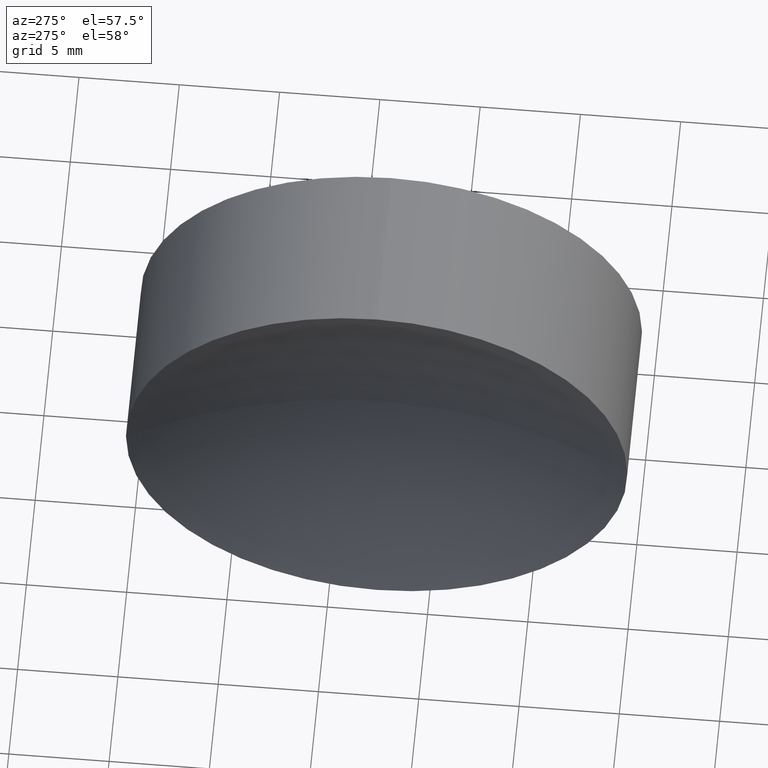
[diagram: clean part render]
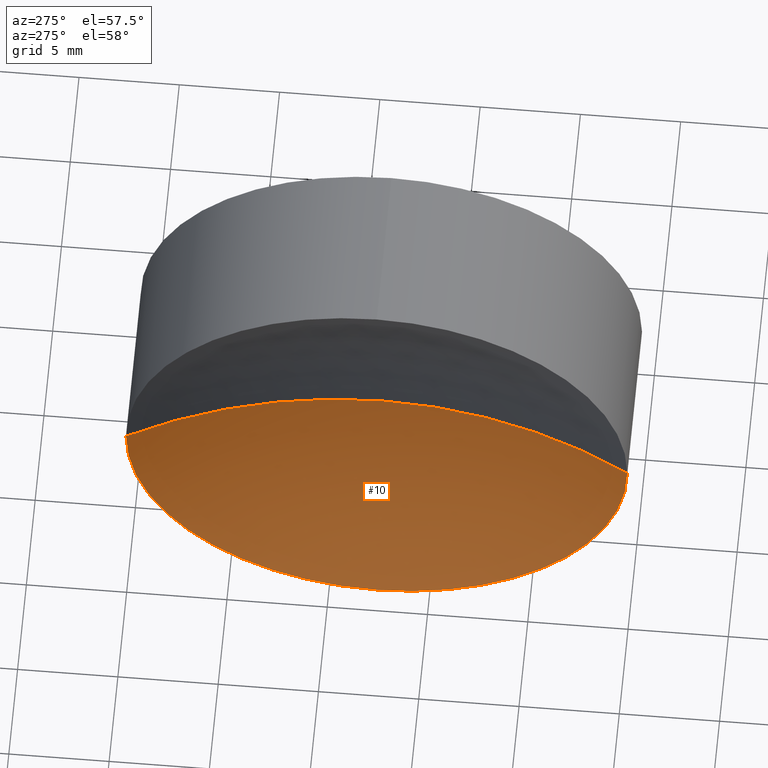
[diagram: same view with one face highlighted and labeled with its STEP entity id]
A machine part, auxiliary view. The second image highlights one B-rep face of the part: STEP entity #10.
In plain terms, the highlighted spherical surface has radius 26.16 mm.
Its self-contained STEP definition (entity closure, byte-faithful):
#9 = EDGE_CURVE ( 'NONE', #110, #179, #200, .T. ) ;
#10 = ADVANCED_FACE ( 'NONE', ( #187 ), #148, .F. ) ;
#12 = DIRECTION ( 'NONE',  ( 0.0000000000000000000, 1.224646799147353200E-016, -1.000000000000000000 ) ) ;
#16 = DIRECTION ( 'NONE',  ( 0.0000000000000000000, 0.0000000000000000000, -1.000000000000000000 ) ) ;
#20 = DIRECTION ( 'NONE',  ( 0.0000000000000000000, 0.0000000000000000000, 1.000000000000000000 ) ) ;
#27 = DIRECTION ( 'NONE',  ( 0.0000000000000000000, 0.0000000000000000000, 1.000000000000000000 ) ) ;
#31 = ORIENTED_EDGE ( 'NONE', *, *, #9, .T. ) ;
#38 = CARTESIAN_POINT ( 'NONE',  ( 55.87281597442936500, 32.61130143649369700, 0.0000000000000000000 ) ) ;
#43 = EDGE_LOOP ( 'NONE', ( #73, #59, #210, #31 ) ) ;
#46 = CIRCLE ( 'NONE', #125, 26.15999999999999700 ) ;
#55 = AXIS2_PLACEMENT_3D ( 'NONE', #206, #12, #186 ) ;
#59 = ORIENTED_EDGE ( 'NONE', *, *, #118, .T. ) ;
#73 = ORIENTED_EDGE ( 'NONE', *, *, #213, .F. ) ;
#78 = CARTESIAN_POINT ( 'NONE',  ( 55.87281597442936500, 45.11130143649369700, 0.0000000000000000000 ) ) ;
#83 = DIRECTION ( 'NONE',  ( 1.000000000000000000, 0.0000000000000000000, 0.0000000000000000000 ) ) ;
#86 = CIRCLE ( 'NONE', #151, 12.49999999999999600 ) ;
#105 = AXIS2_PLACEMENT_3D ( 'NONE', #139, #16, #205 ) ;
#110 = VERTEX_POINT ( 'NONE', #209 ) ;
#111 = CARTESIAN_POINT ( 'NONE',  ( 59.05248525444187600, 32.61130143649370400, 0.0000000000000000000 ) ) ;
#117 = CARTESIAN_POINT ( 'NONE',  ( 32.89248525444188000, 32.61130143649370400, 0.0000000000000000000 ) ) ;
#118 = EDGE_CURVE ( 'NONE', #224, #214, #46, .T. ) ;
#125 = AXIS2_PLACEMENT_3D ( 'NONE', #117, #27, #83 ) ;
#131 = DIRECTION ( 'NONE',  ( -1.000000000000000000, -0.0000000000000000000, -0.0000000000000000000 ) ) ;
#139 = CARTESIAN_POINT ( 'NONE',  ( 32.89248525444188000, 32.61130143649370400, 0.0000000000000000000 ) ) ;
#148 = SPHERICAL_SURFACE ( 'NONE', #105, 26.15999999999999700 ) ;
#149 = CARTESIAN_POINT ( 'NONE',  ( 55.87281597442936500, 20.11130143649371100, -1.530808498934190300E-015 ) ) ;
#151 = AXIS2_PLACEMENT_3D ( 'NONE', #38, #164, #20 ) ;
#156 = AXIS2_PLACEMENT_3D ( 'NONE', #170, #131, #225 ) ;
#164 = DIRECTION ( 'NONE',  ( -1.000000000000000000, -0.0000000000000000000, -0.0000000000000000000 ) ) ;
#170 = CARTESIAN_POINT ( 'NONE',  ( 55.87281597442936500, 32.61130143649369700, 0.0000000000000000000 ) ) ;
#179 = VERTEX_POINT ( 'NONE', #149 ) ;
#186 = DIRECTION ( 'NONE',  ( 0.0000000000000000000, 1.000000000000000000, 1.224646799147353200E-016 ) ) ;
#187 = FACE_OUTER_BOUND ( 'NONE', #43, .T. ) ;
#200 = CIRCLE ( 'NONE', #156, 12.49999999999999600 ) ;
#205 = DIRECTION ( 'NONE',  ( 0.0000000000000000000, 1.000000000000000000, 0.0000000000000000000 ) ) ;
#206 = CARTESIAN_POINT ( 'NONE',  ( 32.89248525444188000, 32.61130143649370400, 0.0000000000000000000 ) ) ;
#209 = CARTESIAN_POINT ( 'NONE',  ( 55.87281597442936500, 32.61130143649369700, -12.49999999999999600 ) ) ;
#210 = ORIENTED_EDGE ( 'NONE', *, *, #220, .T. ) ;
#213 = EDGE_CURVE ( 'NONE', #224, #179, #226, .T. ) ;
#214 = VERTEX_POINT ( 'NONE', #78 ) ;
#220 = EDGE_CURVE ( 'NONE', #214, #110, #86, .T. ) ;
#224 = VERTEX_POINT ( 'NONE', #111 ) ;
#225 = DIRECTION ( 'NONE',  ( 0.0000000000000000000, 0.0000000000000000000, 1.000000000000000000 ) ) ;
#226 = CIRCLE ( 'NONE', #55, 26.15999999999999700 ) ;